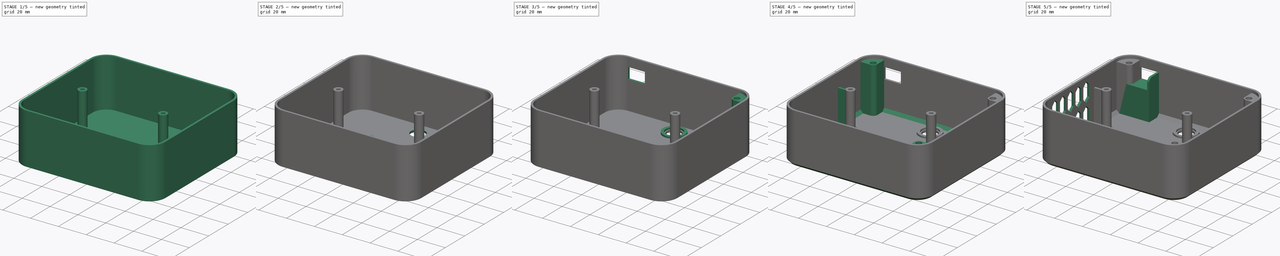
[diagram: build sequence overview — one tinted view per stage of 5, left to right]
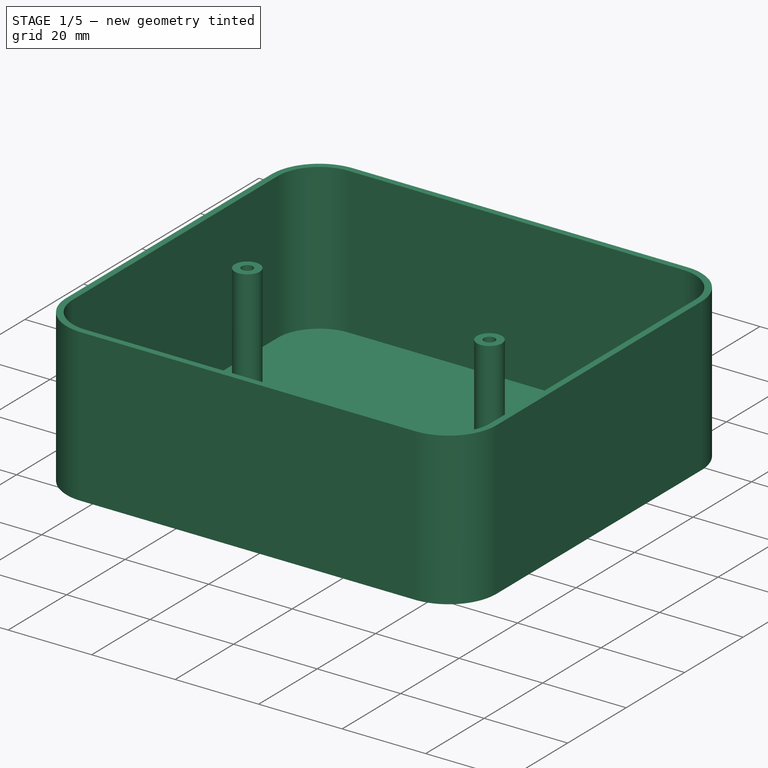
[diagram: stage 1 of 5 — iso view after this stage's code; geometry added in this stage tinted green]
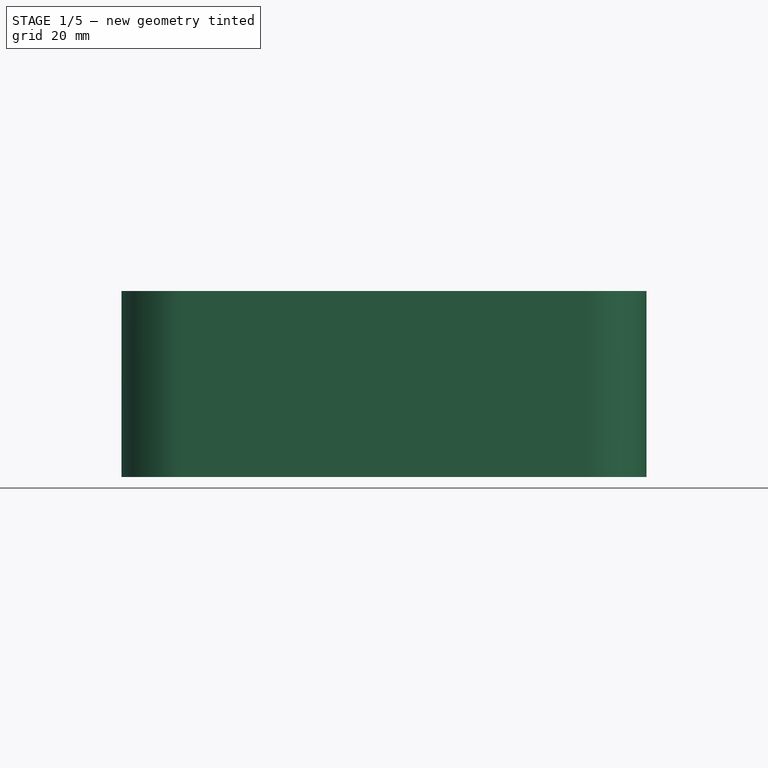
[diagram: stage 1 of 5 — front view after this stage's code; geometry added in this stage tinted green]
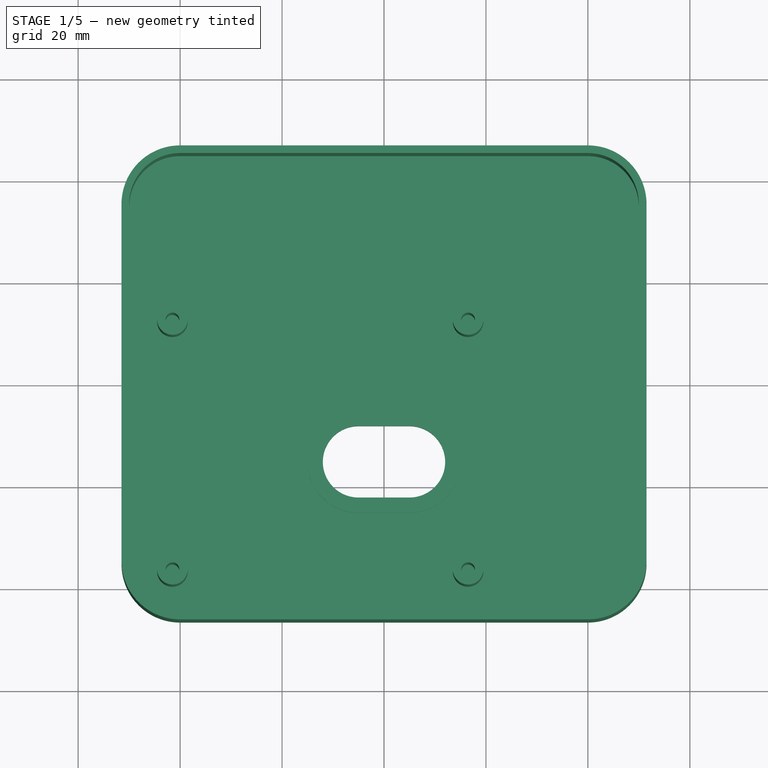
[diagram: stage 1 of 5 — top view after this stage's code; geometry added in this stage tinted green]
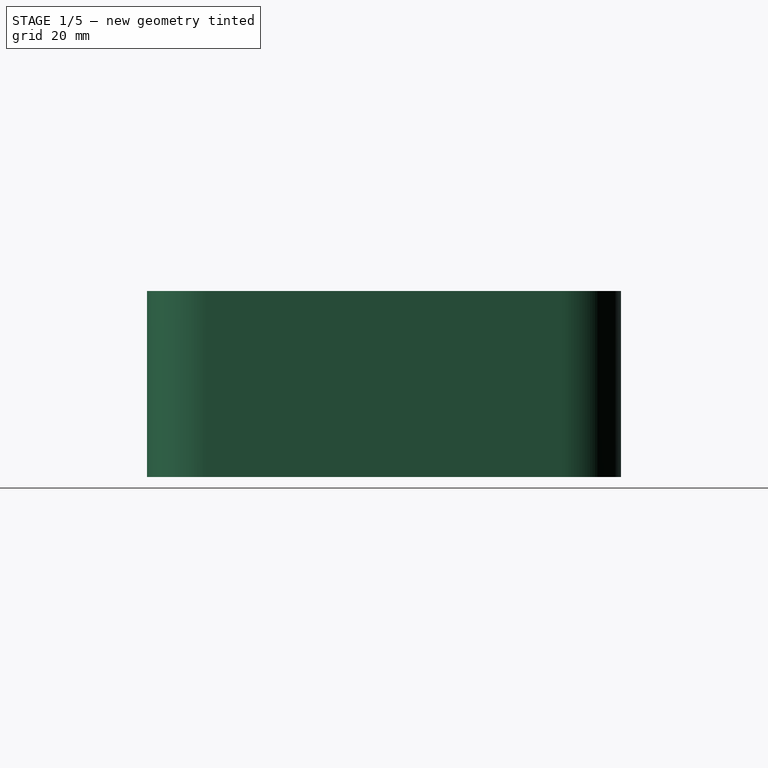
[diagram: stage 1 of 5 — right view after this stage's code; geometry added in this stage tinted green]
FCSTD DOCUMENT  (FreeCAD 1.0R39285 (Git))
Label: case_top
License: All rights reserved
LicenseURL: https://en.wikipedia.org/wiki/All_rights_reserved
objects: Sketcher::SketchObject×14, PartDesign::Pad×9, PartDesign::Pocket×6, PartDesign::LinearPattern×4, PartDesign::Mirrored×2, PartDesign::Chamfer×2, PartDesign::Thickness×1, PartDesign::MultiTransform×1, PartDesign::Fillet×1, PartDesign::Body×1
note: 100 computed .brp shape members not serialized (recipe doc carries the construction recipe); baked Part::Feature solids carry a one-line shape summary decoded from their .brp

FEATURE [Sketcher::SketchObject] Sketch
  ArcFitTolerance = 1e-06
  AttachmentSupport = -> [XY_Plane]
  FullyConstrained = true
  MakeInternals = false
  MapMode = 5
  sketch-geometry (13):
    g0: LineSegment StartX=50 StartY=-35 StartZ=0 EndX=50 EndY=35 EndZ=0
    g1: LineSegment StartX=40 StartY=45 StartZ=0 EndX=-40 EndY=45 EndZ=0
    g2: LineSegment StartX=-50 StartY=35 StartZ=0 EndX=-50 EndY=-35 EndZ=0
    g3: LineSegment StartX=-40 StartY=-45 StartZ=0 EndX=40 EndY=-45 EndZ=0
    g4: GeomPoint [constr] X=0 Y=0 Z=0
    g5: ArcOfCircle CenterX=-40 CenterY=35 CenterZ=0 NormalX=0 NormalY=0 NormalZ=1 AngleXU=0 Radius=10 StartAngle=1.5708 EndAngle=3.14159
    g6: GeomPoint [constr] X=-50 Y=45 Z=0
    g7: ArcOfCircle CenterX=40 CenterY=35 CenterZ=0 NormalX=0 NormalY=0 NormalZ=1 AngleXU=0 Radius=10 StartAngle=3e-16 EndAngle=1.5708
    g8: GeomPoint [constr] X=50 Y=45 Z=0
    g9: ArcOfCircle CenterX=40 CenterY=-35 CenterZ=0 NormalX=0 NormalY=0 NormalZ=1 AngleXU=0 Radius=10 StartAngle=4.71239 EndAngle=6.28319
    g10: GeomPoint [constr] X=50 Y=-45 Z=0
    g11: ArcOfCircle CenterX=-40 CenterY=-35 CenterZ=0 NormalX=0 NormalY=0 NormalZ=1 AngleXU=0 Radius=10 StartAngle=3.14159 EndAngle=4.71239
    g12: GeomPoint [constr] X=-50 Y=-45 Z=0
  constraints (28):
    c: Vertical(g0)
    c: Vertical(g2)
    c: Horizontal(g1)
    c: Horizontal(g3)
    c: Symmetric(g6,g10,g4)
    c: Coincident(g4,g-1)
    c: PointOnObject(g6,g1)
    c: PointOnObject(g6,g2)
    c: Tangent(g1,g5) = -1.5708
    c: Tangent(g2,g5) = -1.5708
    c: PointOnObject(g8,g0)
    c: PointOnObject(g8,g1)
    c: Tangent(g0,g7) = -1.5708
    c: Tangent(g1,g7) = -1.5708
    c: PointOnObject(g10,g0)
    c: PointOnObject(g10,g3)
    c: Tangent(g0,g9) = -1.5708
    c: Tangent(g3,g9) = -1.5708
    c: PointOnObject(g12,g2)
    c: PointOnObject(g12,g3)
    c: Tangent(g2,g11) = -1.5708
    c: Tangent(g3,g11) = -1.5708
    c: Distance(g3,g1) = 90
    c: Distance(g0,g2) = 100
    c: Radius(g7) = 10
    c: Equal(g7,g9)
    c: Equal(g9,g11)
    c: Equal(g11,g5)
FEATURE [PartDesign::Pad] Pad  label="Volume de base"
  Direction = (0,0,1)
  Length = 35
  Length2 = 10
  Profile = -> Sketch
  ReferenceAxis = -> Sketch [N_Axis]
  Refine = true
  Suppressed = false
  Type = 0
FEATURE [PartDesign::Thickness] Thickness  label="Coque"
  Base = -> Pad [Face10]
  BaseFeature = -> Pad
  Intersection = false
  Join = 1
  Mode = 0
  Refine = true
  SupportTransform = false
  Suppressed = false
  Value = 1.5
FEATURE [Sketcher::SketchObject] Sketch001
  ArcFitTolerance = 1e-06
  AttachmentSupport = -> [Thickness]
  ExternalGeometry = -> [Thickness]
  FullyConstrained = true
  MakeInternals = false
  MapMode = 5
  sketch-geometry (12):
    g0: LineSegment [constr] StartX=-41.5 StartY=12.5 StartZ=0 EndX=-41.5 EndY=-36.5 EndZ=0
    g1: LineSegment [constr] StartX=-41.5 StartY=-36.5 StartZ=0 EndX=16.5 EndY=-36.5 EndZ=0
    g2: LineSegment [constr] StartX=16.5 StartY=-36.5 StartZ=0 EndX=16.5 EndY=12.5 EndZ=0
    g3: LineSegment [constr] StartX=16.5 StartY=12.5 StartZ=0 EndX=-41.5 EndY=12.5 EndZ=0
    g4: Circle CenterX=-41.5 CenterY=12.5 CenterZ=0 NormalX=0 NormalY=0 NormalZ=1 AngleXU=0 Radius=3
    g5: Circle CenterX=-41.5 CenterY=-36.5 CenterZ=0 NormalX=0 NormalY=0 NormalZ=1 AngleXU=0 Radius=3
    g6: Circle CenterX=-41.5 CenterY=-36.5 CenterZ=0 NormalX=0 NormalY=0 NormalZ=1 AngleXU=0 Radius=1.35
    g7: Circle CenterX=16.5 CenterY=-36.5 CenterZ=0 NormalX=0 NormalY=0 NormalZ=1 AngleXU=0 Radius=3
    g8: Circle CenterX=16.5 CenterY=-36.5 CenterZ=0 NormalX=0 NormalY=0 NormalZ=1 AngleXU=0 Radius=1.35
    g9: Circle CenterX=16.5 CenterY=12.5 CenterZ=0 NormalX=0 NormalY=0 NormalZ=1 AngleXU=0 Radius=3
    g10: Circle CenterX=16.5 CenterY=12.5 CenterZ=0 NormalX=0 NormalY=0 NormalZ=1 AngleXU=0 Radius=1.35
    g11: Circle CenterX=-41.5 CenterY=12.5 CenterZ=0 NormalX=0 NormalY=0 NormalZ=1 AngleXU=0 Radius=1.35
  constraints (28):
    c: Coincident(g0,g1)
    c: Coincident(g1,g2)
    c: Coincident(g2,g3)
    c: Coincident(g3,g0)
    c: Vertical(g0)
    c: Vertical(g2)
    c: Horizontal(g1)
    c: Horizontal(g3)
    c: Coincident(g4,g0)
    c: Coincident(g5,g0)
    c: Coincident(g6,g0)
    c: Coincident(g7,g1)
    c: Coincident(g8,g1)
    c: Coincident(g9,g2)
    c: Coincident(g10,g2)
    c: Coincident(g11,g0)
    c: Equal(g8,g6)
    c: Equal(g6,g11)
    c: Equal(g11,g10)
    c: Diameter(g10) = 2.7
    c: Equal(g4,g9)
    c: Equal(g9,g5)
    c: Equal(g5,g7)
    c: Diameter(g9) = 6
    c: DistanceX(g3,g3) = 58
    c: DistanceY(g2,g2) = 49
    c: Distance(g-3,g0) = 8.5
    c: Distance(g1,g-5) = 8.5
FEATURE [PartDesign::Pad] Pad001  label="Piliers RPi"
  BaseFeature = -> Thickness
  Direction = (0,0,1)
  Length = 26
  Length2 = 10
  Profile = -> Sketch001
  ReferenceAxis = -> Sketch001 [N_Axis]
  Refine = true
  Suppressed = false
  Type = 0
FEATURE [Sketcher::SketchObject] Sketch002
  ArcFitTolerance = 1e-06
  AttachmentSupport = -> [Pad001]
  FullyConstrained = true
  MakeInternals = false
  MapMode = 5
  sketch-geometry (9):
    g0: ArcOfCircle CenterX=-5 CenterY=-15 CenterZ=0 NormalX=0 NormalY=0 NormalZ=1 AngleXU=0 Radius=10 StartAngle=1.5708 EndAngle=4.71239
    g1: ArcOfCircle CenterX=5 CenterY=-15 CenterZ=0 NormalX=0 NormalY=0 NormalZ=1 AngleXU=0 Radius=10 StartAngle=4.71239 EndAngle=7.85398
    g2: LineSegment StartX=-5 StartY=-5 StartZ=0 EndX=5 EndY=-5 EndZ=0
    g3: LineSegment StartX=-5 StartY=-25 StartZ=0 EndX=5 EndY=-25 EndZ=0
    g4: LineSegment [constr] StartX=0 StartY=-5 StartZ=0 EndX=0 EndY=0 EndZ=0
    g5: ArcOfCircle CenterX=-5 CenterY=-15 CenterZ=0 NormalX=0 NormalY=0 NormalZ=1 AngleXU=0 Radius=7 StartAngle=1.5708 EndAngle=4.71239
    g6: ArcOfCircle CenterX=5 CenterY=-15 CenterZ=0 NormalX=0 NormalY=0 NormalZ=1 AngleXU=0 Radius=7 StartAngle=4.71239 EndAngle=7.85398
    g7: LineSegment StartX=-5 StartY=-8 StartZ=0 EndX=5 EndY=-8 EndZ=0
    g8: LineSegment StartX=-5 StartY=-22 StartZ=0 EndX=5 EndY=-22 EndZ=0
  constraints (20):
    c: Tangent(g0,g2) = 1.5708
    c: Tangent(g0,g3) = -1.5708
    c: Tangent(g1,g2) = 1.5708
    c: Tangent(g1,g3) = -1.5708
    c: Equal(g0,g1)
    c: Symmetric(g2,g2,g4)
    c: Coincident(g4,g-1)
    c: Vertical(g4)
    c: Horizontal(g2)
    c: Distance(g2,g3) = 20
    c: DistanceX(g3,g3) = 10
    c: DistanceY(g4,g4) = 5
    c: Tangent(g5,g7) = 1.5708
    c: Tangent(g5,g8) = -1.5708
    c: Tangent(g6,g7) = 1.5708
    c: Tangent(g6,g8) = -1.5708
    c: Equal(g5,g6)
    c: Distance(g2,g7) = 3
    c: Coincident(g6,g1)
    c: Coincident(g5,g0)
FEATURE [PartDesign::Pad] Pad002  label="Levre speaker"
  BaseFeature = -> Pad001
  Direction = (0,0,1)
  Length = 1.2
  Length2 = 10
  Profile = -> Sketch002
  ReferenceAxis = -> Sketch002 [N_Axis]
  Refine = true
  Suppressed = false
  Type = 0
FEATURE [PartDesign::Pocket] Pocket  label="Trou speaker"
  BaseFeature = -> Pad002
  Direction = (0,0,-1)
  Length = 5
  Length2 = 5
  Profile = -> Pad002 [Face43]
  Refine = true
  Suppressed = false
  Type = 1
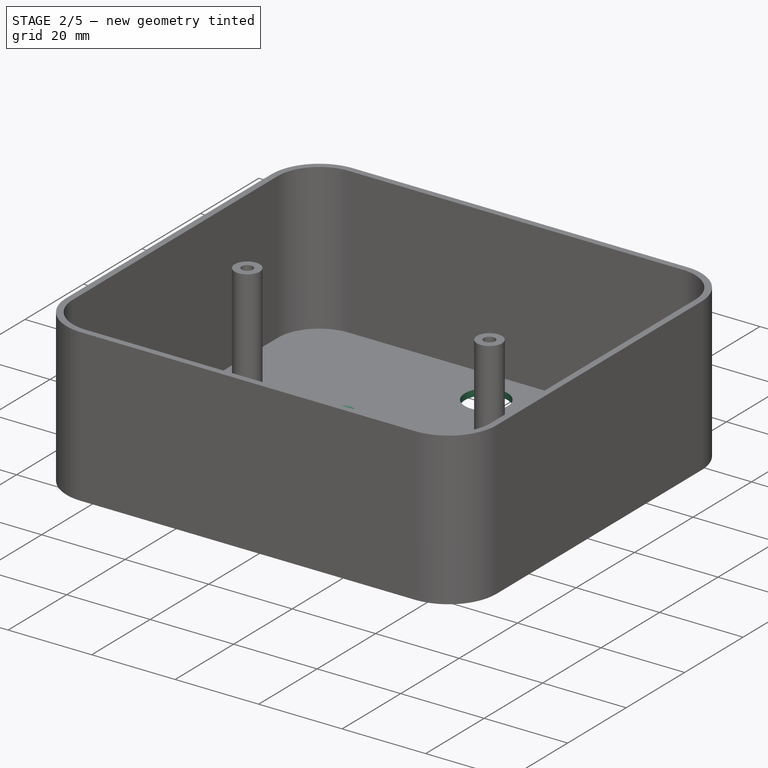
[diagram: stage 2 of 5 — iso view after this stage's code; geometry added in this stage tinted green]
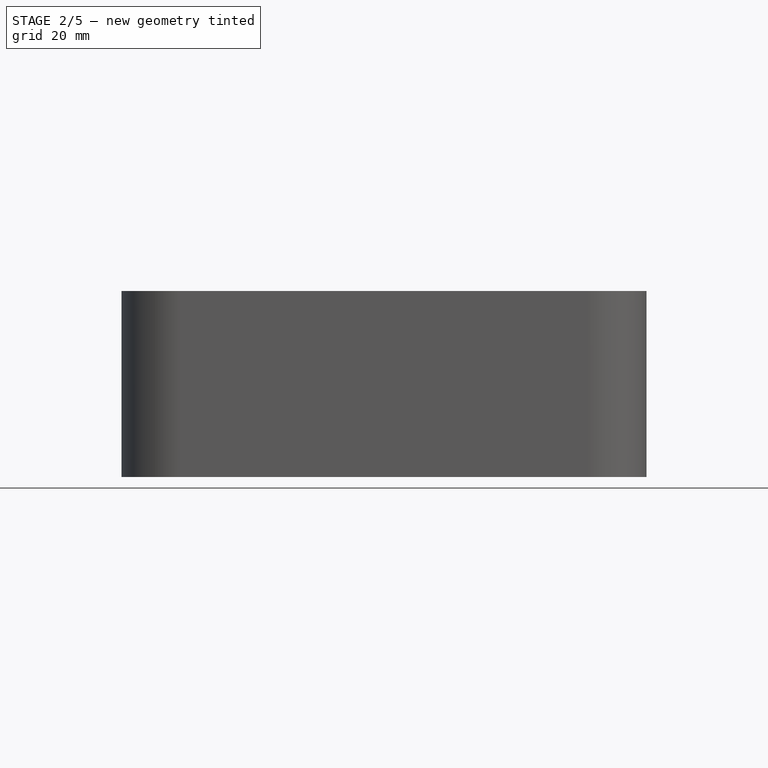
[diagram: stage 2 of 5 — front view after this stage's code; geometry added in this stage tinted green]
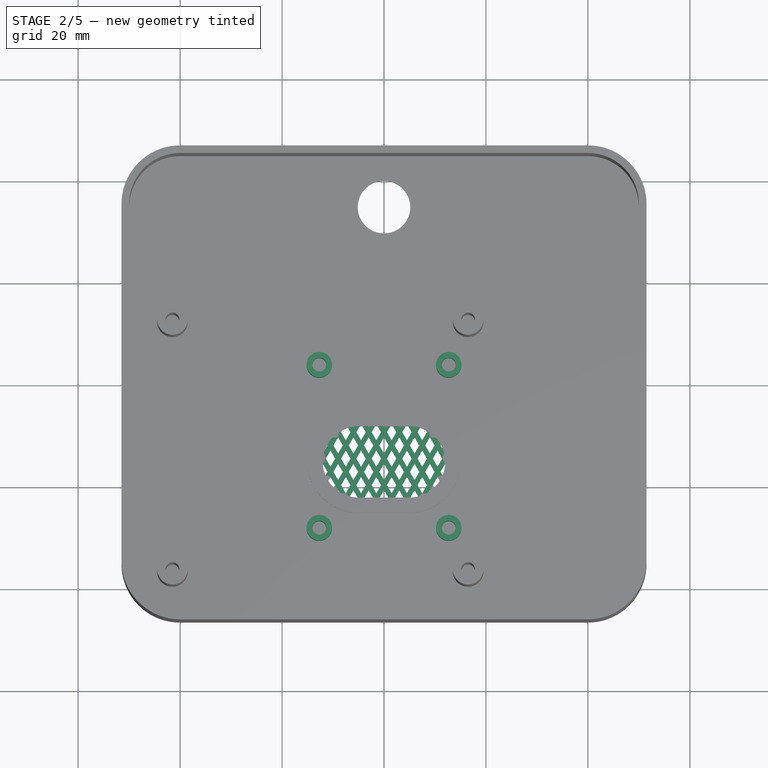
[diagram: stage 2 of 5 — top view after this stage's code; geometry added in this stage tinted green]
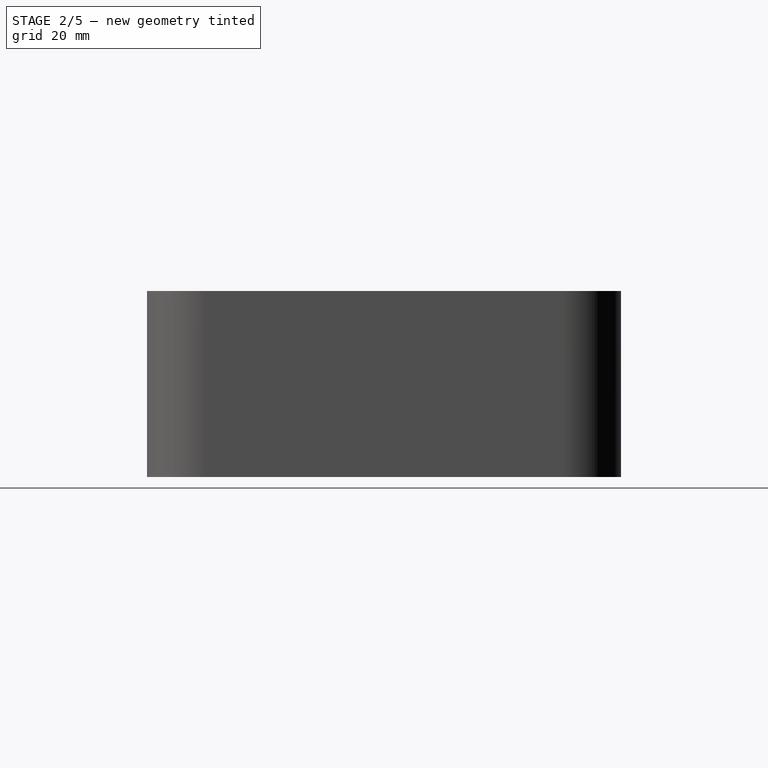
[diagram: stage 2 of 5 — right view after this stage's code; geometry added in this stage tinted green]
FEATURE [Sketcher::SketchObject] Sketch003
  ArcFitTolerance = 1e-06
  AttachmentSupport = -> [Pocket]
  ExternalGeometry = -> [Pocket]
  FullyConstrained = false
  MakeInternals = false
  MapMode = 5
  sketch-geometry (12):
    g0: LineSegment StartX=-5 StartY=-22 StartZ=0 EndX=-0.57735 EndY=-14.3397 EndZ=0
    g1: LineSegment StartX=3.0829 StartY=-8 StartZ=0 EndX=4.2376 EndY=-8 EndZ=0
    g2: LineSegment StartX=4.2376 StartY=-8 StartZ=0 EndX=0.57735 EndY=-14.3397 EndZ=0
    g3: LineSegment StartX=-3.8453 StartY=-22 StartZ=0 EndX=-5 EndY=-22 EndZ=0
    g4: LineSegment StartX=5 StartY=-22 StartZ=0 EndX=3.8453 EndY=-22 EndZ=0
    g5: LineSegment StartX=3.8453 StartY=-22 StartZ=0 EndX=1.3e-15 EndY=-15.3397 EndZ=0
    g6: LineSegment StartX=-4.2376 StartY=-8 StartZ=0 EndX=-3.0829 EndY=-8 EndZ=0
    g7: LineSegment StartX=-3.0829 StartY=-8 StartZ=0 EndX=0 EndY=-13.3397 EndZ=0
    g8: LineSegment StartX=0 StartY=-13.3397 StartZ=0 EndX=3.0829 EndY=-8 EndZ=0
    g9: LineSegment StartX=-0.57735 StartY=-14.3397 StartZ=0 EndX=-4.2376 EndY=-8 EndZ=0
    g10: LineSegment StartX=9e-16 StartY=-15.3397 StartZ=0 EndX=-3.8453 EndY=-22 EndZ=0
    g11: LineSegment StartX=0.57735 StartY=-14.3397 StartZ=0 EndX=5 EndY=-22 EndZ=0
  constraints (29):
    c: Coincident(g0,g-4)
    c: PointOnObject(g8,g-6)
    c: Coincident(g1,g8)
    c: PointOnObject(g1,g-6)
    c: Coincident(g2,g1)
    c: Coincident(g3,g10)
    c: Coincident(g3,g0)
    c: Horizontal(g3)
    c: Parallel(g2,g0)
    c: Distance(g2,g0) = 1
    c: Angle(g-4,g2) = 1.0472
    c: Coincident(g4,g-5)
    c: PointOnObject(g4,g-4)
    c: Coincident(g5,g4)
    c: PointOnObject(g9,g-6)
    c: Coincident(g6,g9)
    c: PointOnObject(g6,g-6)
    c: Coincident(g7,g6)
    c: Coincident(g11,g4)
    c: Parallel(g7,g5)
    c: Equal(g3,g4)
    c: Angle(g5,g-4) = 1.0472
    c: PointOnObject(g0,g9)
    c: PointOnObject(g5,g10)
    c: PointOnObject(g9,g0)
    c: PointOnObject(g2,g11)
    c: PointOnObject(g10,g5)
    c: Coincident(g7,g8)
    c: PointOnObject(g11,g2)
FEATURE [PartDesign::Pad] Pad003  label="Grillage speaker"
  BaseFeature = -> Pocket
  Direction = (0,0,1)
  Length = 1
  Length2 = 10
  Profile = -> Sketch003
  ReferenceAxis = -> Sketch003 [N_Axis]
  Refine = true
  Reversed = true
  Suppressed = false
  Type = 3
  UpToFace = -> Pocket [Face32]
FEATURE [PartDesign::LinearPattern] LinearPattern  label="Grillage speaker001"
  BaseFeature = -> Pad003
  Direction = -> Sketch003 [H_Axis]
  Length = 12
  Mode = 1
  Occurrences = 5
  Offset = 3
  Originals = -> [Pad003]
  Refine = true
  Suppressed = false
  TransformMode = 0
FEATURE [PartDesign::LinearPattern] LinearPattern001  label="Grillage speaker002"
  BaseFeature = -> LinearPattern
  Direction = -> Sketch003 [H_Axis]
  Length = 12
  Mode = 1
  Occurrences = 5
  Offset = 3
  Originals = -> [Pad003]
  Refine = true
  Reversed = true
  Suppressed = false
  TransformMode = 0
FEATURE [Sketcher::SketchObject] Sketch004
  ArcFitTolerance = 1e-06
  AttachmentSupport = -> [LinearPattern001]
  ExternalGeometry = -> [LinearPattern001]
  FullyConstrained = true
  MakeInternals = false
  MapMode = 5
  sketch-geometry (13):
    g0: LineSegment [constr] StartX=12.7 StartY=-28 StartZ=0 EndX=12.7 EndY=4 EndZ=0
    g1: LineSegment [constr] StartX=12.7 StartY=4 StartZ=0 EndX=-12.7 EndY=4 EndZ=0
    g2: LineSegment [constr] StartX=-12.7 StartY=4 StartZ=0 EndX=-12.7 EndY=-28 EndZ=0
    g3: LineSegment [constr] StartX=-12.7 StartY=-28 StartZ=0 EndX=12.7 EndY=-28 EndZ=0
    g4: GeomPoint [constr] X=0 Y=-12 Z=0
    g5: Circle CenterX=-12.7 CenterY=4 CenterZ=0 NormalX=0 NormalY=0 NormalZ=1 AngleXU=0 Radius=1.35
    g6: Circle CenterX=-12.7 CenterY=4 CenterZ=0 NormalX=0 NormalY=0 NormalZ=1 AngleXU=0 Radius=2.5
    g7: Circle CenterX=-12.7 CenterY=-28 CenterZ=0 NormalX=0 NormalY=0 NormalZ=1 AngleXU=0 Radius=1.35
    g8: Circle CenterX=-12.7 CenterY=-28 CenterZ=0 NormalX=0 NormalY=0 NormalZ=1 AngleXU=0 Radius=2.5
    g9: Circle CenterX=12.7 CenterY=-28 CenterZ=0 NormalX=0 NormalY=0 NormalZ=1 AngleXU=0 Radius=1.35
    g10: Circle CenterX=12.7 CenterY=-28 CenterZ=0 NormalX=0 NormalY=0 NormalZ=1 AngleXU=0 Radius=2.5
    g11: Circle CenterX=12.7 CenterY=4 CenterZ=0 NormalX=0 NormalY=0 NormalZ=1 AngleXU=0 Radius=1.35
    g12: Circle CenterX=12.7 CenterY=4 CenterZ=0 NormalX=0 NormalY=0 NormalZ=1 AngleXU=0 Radius=2.5
  constraints (29):
    c: Coincident(g0,g1)
    c: Coincident(g1,g2)
    c: Coincident(g2,g3)
    c: Coincident(g3,g0)
    c: Vertical(g0)
    c: Vertical(g2)
    c: Horizontal(g1)
    c: Horizontal(g3)
    c: Symmetric(g2,g0,g4)
    c: PointOnObject(g4,g-2)
    c: Coincident(g5,g1)
    c: Coincident(g6,g1)
    c: Coincident(g7,g2)
    c: Coincident(g8,g2)
    c: Coincident(g9,g0)
    c: Coincident(g10,g0)
    c: Coincident(g11,g0)
    c: Coincident(g12,g0)
    c: Equal(g9,g11)
    c: Equal(g11,g5)
    c: Equal(g5,g7)
    c: Equal(g8,g6)
    c: Equal(g6,g12)
    c: Equal(g12,g10)
    c: DistanceY(g0,g0) = 32
    c: DistanceX(g3,g3) = 25.4
    c: Diameter(g6) = 5
    c: Diameter(g5) = 2.7
    c: Distance(g3,g-3) = 3
FEATURE [PartDesign::Pad] Pad004  label="Piliers speaker"
  BaseFeature = -> LinearPattern001
  Direction = (0,0,1)
  Length = 6
  Length2 = 10
  Profile = -> Sketch004
  ReferenceAxis = -> Sketch004 [N_Axis]
  Refine = true
  Suppressed = false
  Type = 0
FEATURE [Sketcher::SketchObject] Sketch005
  ArcFitTolerance = 1e-06
  AttachmentSupport = -> [Pad004]
  FullyConstrained = true
  MakeInternals = false
  MapMode = 5
  sketch-geometry (1):
    g0: Circle CenterX=0 CenterY=35 CenterZ=0 NormalX=0 NormalY=0 NormalZ=1 AngleXU=0 Radius=5.15
  constraints (3):
    c: PointOnObject(g0,g-2)
    c: Diameter(g0) = 10.3
    c: DistanceY(g-1,g0) = 35
FEATURE [PartDesign::Pocket] Pocket001  label="Trou PIR"
  BaseFeature = -> Pad004
  Direction = (0,0,-1)
  Length = 5
  Length2 = 5
  Profile = -> Sketch005
  ReferenceAxis = -> Sketch005 [N_Axis]
  Refine = true
  Suppressed = false
  Type = 1
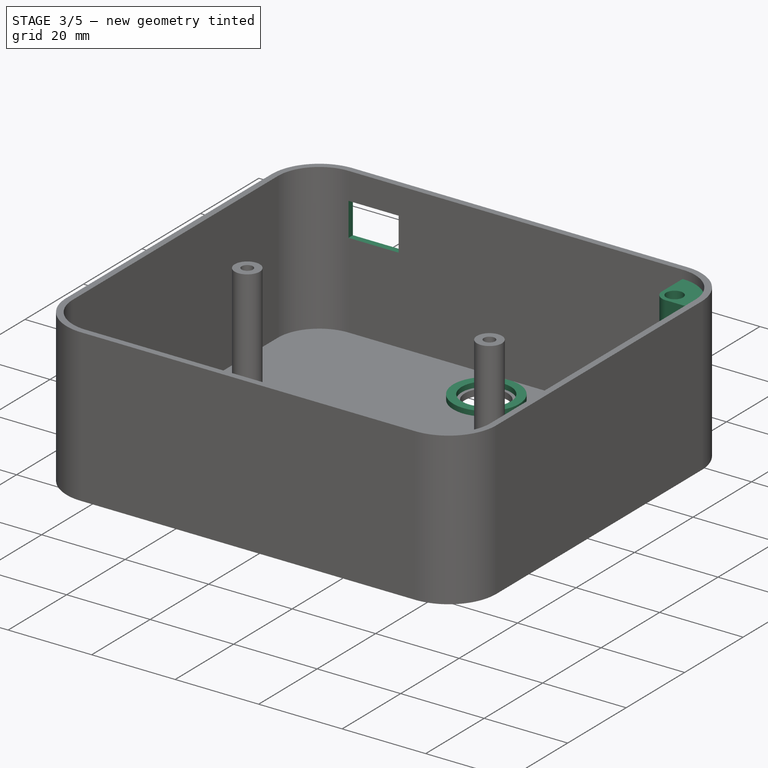
[diagram: stage 3 of 5 — iso view after this stage's code; geometry added in this stage tinted green]
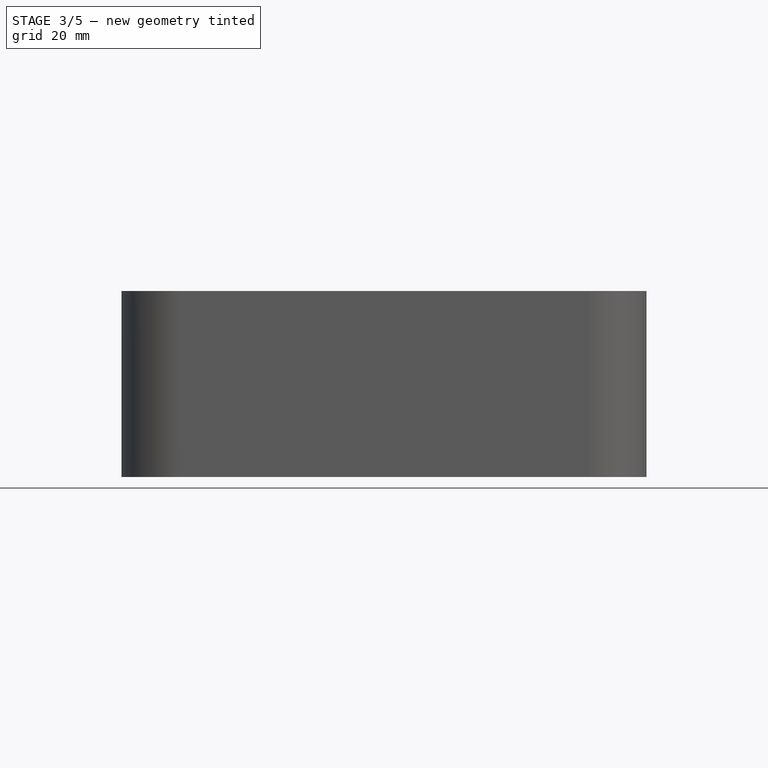
[diagram: stage 3 of 5 — front view after this stage's code; geometry added in this stage tinted green]
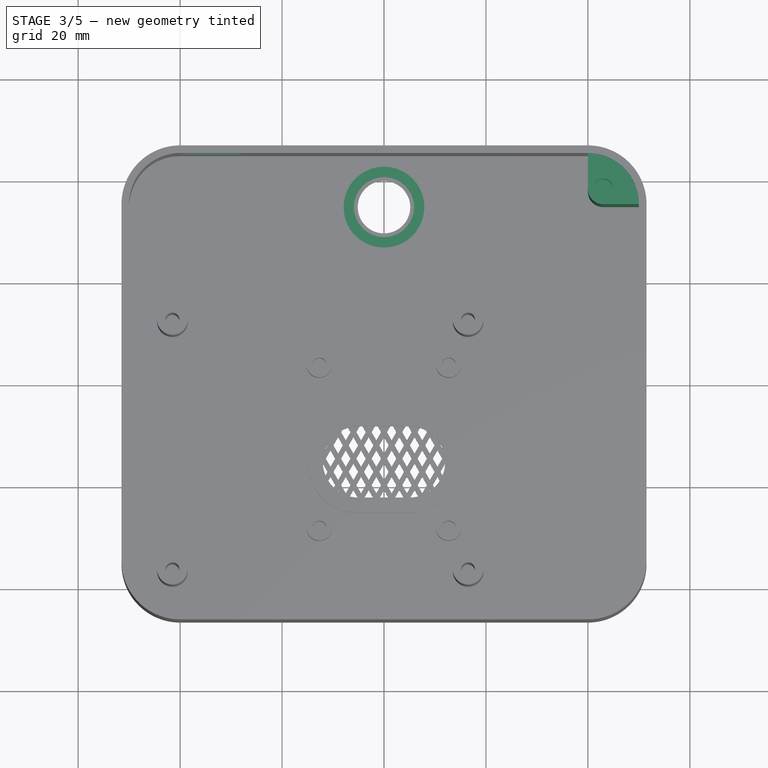
[diagram: stage 3 of 5 — top view after this stage's code; geometry added in this stage tinted green]
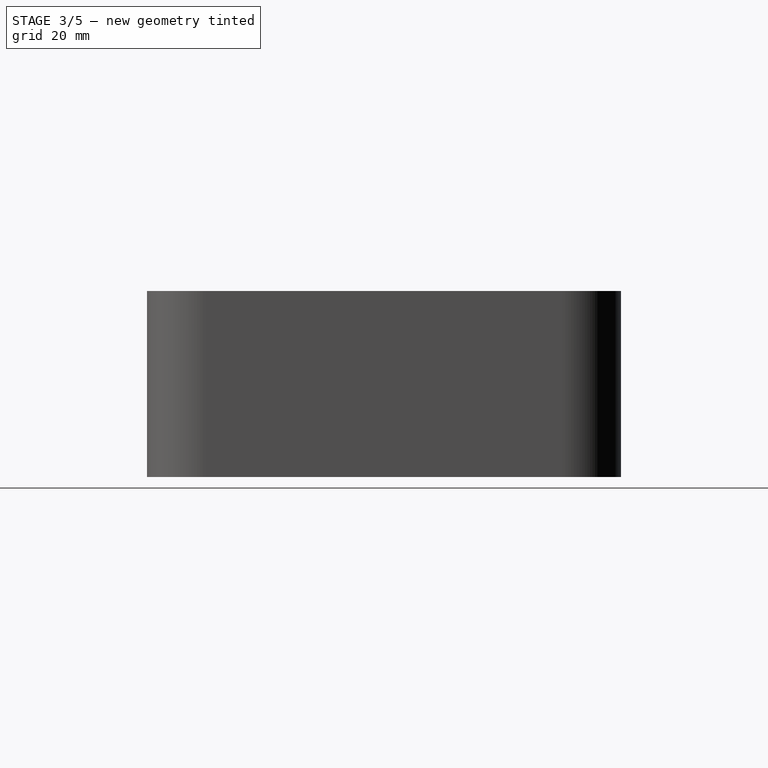
[diagram: stage 3 of 5 — right view after this stage's code; geometry added in this stage tinted green]
FEATURE [Sketcher::SketchObject] Sketch006
  ArcFitTolerance = 1e-06
  AttachmentSupport = -> [Pocket001]
  ExternalGeometry = -> [Pocket001]
  FullyConstrained = true
  MakeInternals = false
  MapMode = 5
  sketch-geometry (2):
    g0: Circle CenterX=0 CenterY=35 CenterZ=0 NormalX=0 NormalY=0 NormalZ=1 AngleXU=0 Radius=7.9
    g1: Circle CenterX=0 CenterY=35 CenterZ=0 NormalX=0 NormalY=0 NormalZ=1 AngleXU=0 Radius=5.9
  constraints (4):
    c: Coincident(g0,g-3)
    c: Coincident(g1,g0)
    c: Distance(g1,g0) = 2
    c: Diameter(g1) = 11.8
FEATURE [PartDesign::Pad] Pad005  label="Levre PIR"
  BaseFeature = -> Pocket001
  Direction = (0,0,1)
  Length = 1.2
  Length2 = 10
  Profile = -> Sketch006
  ReferenceAxis = -> Sketch006 [N_Axis]
  Refine = true
  Suppressed = false
  Type = 0
FEATURE [Sketcher::SketchObject] Sketch007
  ArcFitTolerance = 1e-06
  AttachmentSupport = -> [Pad005]
  ExternalGeometry = -> [Pad005]
  FullyConstrained = true
  MakeInternals = false
  MapMode = 5
  Placement = pos=(0,46.5,0) rot=(0,0.707107,0.707107;3.14159rad)
  sketch-geometry (5):
    g0: LineSegment StartX=40 StartY=20.5 StartZ=0 EndX=40 EndY=28.5 EndZ=0
    g1: LineSegment StartX=40 StartY=28.5 StartZ=0 EndX=28 EndY=28.5 EndZ=0
    g2: LineSegment StartX=28 StartY=28.5 StartZ=0 EndX=28 EndY=20.5 EndZ=0
    g3: LineSegment StartX=28 StartY=20.5 StartZ=0 EndX=40 EndY=20.5 EndZ=0
    g4: GeomPoint [constr] X=34 Y=24.5 Z=0
  constraints (13):
    c: Coincident(g0,g1)
    c: Coincident(g1,g2)
    c: Coincident(g2,g3)
    c: Coincident(g3,g0)
    c: Vertical(g0)
    c: Vertical(g2)
    c: Horizontal(g1)
    c: Horizontal(g3)
    c: Symmetric(g2,g0,g4)
    c: DistanceX(g1,g1) = 12
    c: DistanceY(g0,g0) = 8
    c: Distance(g4,g-3) = 16
    c: Distance(g4,g-4) = 1.5
FEATURE [PartDesign::Pocket] Pocket002  label="Trou USB"
  BaseFeature = -> Pad005
  Direction = (0,-1,2e-16)
  Length = 5
  Length2 = 5
  Profile = -> Sketch007
  ReferenceAxis = -> Sketch007 [N_Axis]
  Refine = true
  Suppressed = false
  Type = 2
FEATURE [Sketcher::SketchObject] Sketch008
  ArcFitTolerance = 1e-06
  AttachmentSupport = -> [Pocket002]
  ExternalGeometry = -> [Pocket002]
  FullyConstrained = true
  MakeInternals = false
  MapMode = 5
  sketch-geometry (5):
    g0: Circle [constr] CenterX=43 CenterY=38 CenterZ=0 NormalX=0 NormalY=0 NormalZ=1 AngleXU=0 Radius=2
    g1: LineSegment StartX=40 StartY=45 StartZ=0 EndX=40 EndY=38 EndZ=0
    g2: LineSegment StartX=50 StartY=35 StartZ=0 EndX=43 EndY=35 EndZ=0
    g3: ArcOfCircle CenterX=40 CenterY=35 CenterZ=0 NormalX=0 NormalY=0 NormalZ=1 AngleXU=0 Radius=10 StartAngle=0 EndAngle=1.5708
    g4: ArcOfCircle CenterX=43 CenterY=38 CenterZ=0 NormalX=0 NormalY=0 NormalZ=1 AngleXU=0 Radius=3 StartAngle=3.14159 EndAngle=4.71239
  constraints (12):
    c: Diameter(g0) = 4
    c: Coincident(g1,g-3)
    c: Vertical(g1)
    c: Coincident(g2,g-3)
    c: Horizontal(g2)
    c: Coincident(g3,g-3)
    c: Coincident(g3,g1)
    c: Coincident(g3,g2)
    c: Coincident(g4,g0)
    c: Tangent(g4,g2) = 1.5708
    c: Tangent(g4,g1) = -1.5708
    c: Distance(g4,g0) = 1
FEATURE [PartDesign::Pad] Pad006  label="Coin"
  BaseFeature = -> Pocket002
  Direction = (0,0,1)
  Length = 10
  Length2 = 10
  Offset = 2
  Profile = -> Sketch008
  ReferenceAxis = -> Sketch008 [N_Axis]
  Refine = true
  Suppressed = false
  Type = 3
  UpToFace = -> Pocket002 [Face5]
FEATURE [Sketcher::SketchObject] Sketch009
  ArcFitTolerance = 1e-06
  AttachmentSupport = -> [Pad006]
  ExternalGeometry = -> [Pad006]
  FullyConstrained = true
  MakeInternals = false
  MapMode = 5
  Placement = pos=(0,0,33) rot=(0,0,1;0rad)
  sketch-geometry (1):
    g0: Circle CenterX=43 CenterY=38 CenterZ=0 NormalX=0 NormalY=0 NormalZ=1 AngleXU=0 Radius=2
  constraints (2):
    c: Coincident(g0,g-3)
    c: Diameter(g0) = 4
FEATURE [PartDesign::Pocket] Pocket003  label="Trou insert M3"
  BaseFeature = -> Pad006
  Direction = (0,0,-1)
  Length = 5.7
  Length2 = 5
  Profile = -> Sketch009
  ReferenceAxis = -> Sketch009 [N_Axis]
  Refine = true
  Suppressed = false
  Type = 0
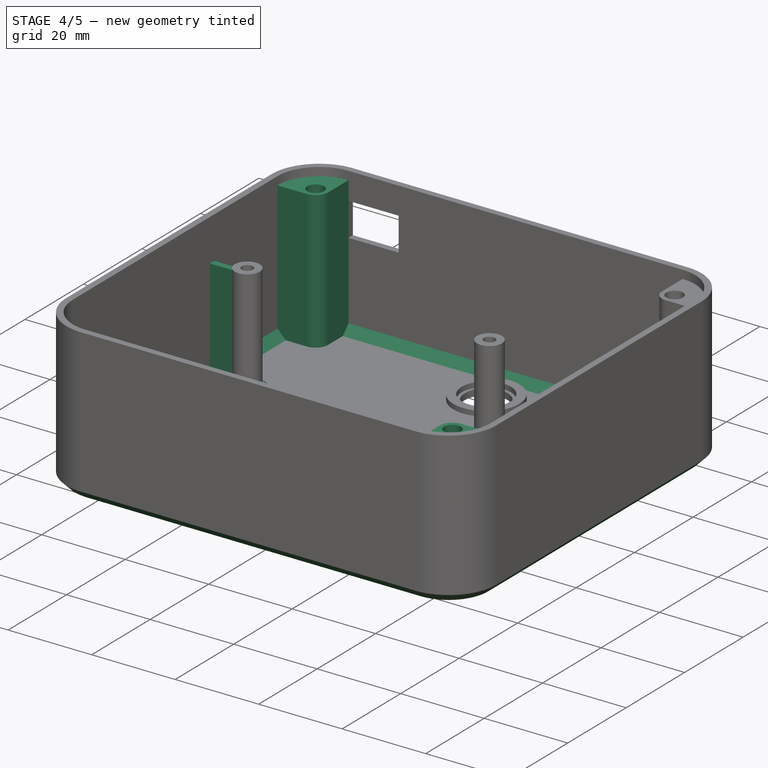
[diagram: stage 4 of 5 — iso view after this stage's code; geometry added in this stage tinted green]
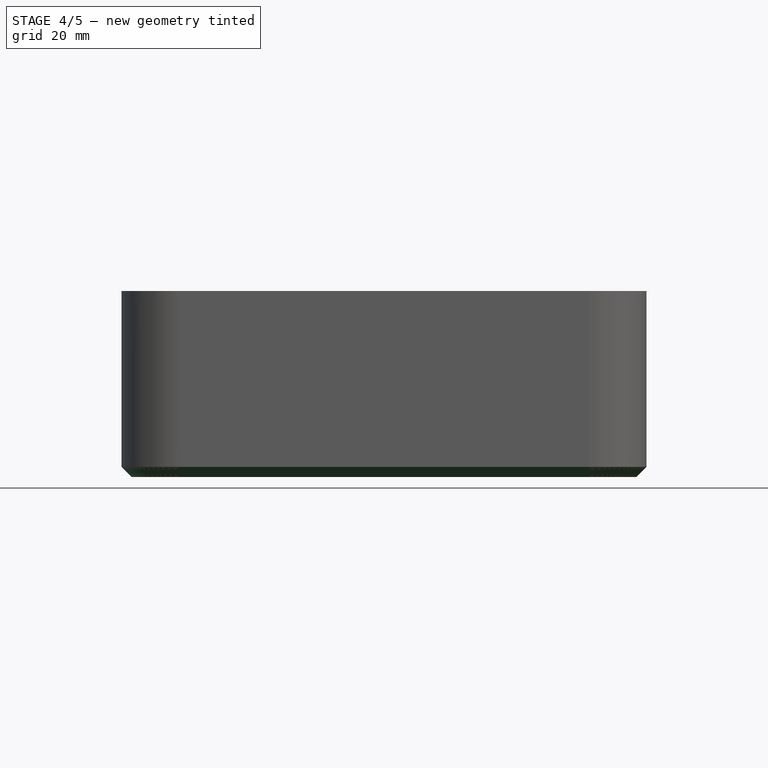
[diagram: stage 4 of 5 — front view after this stage's code; geometry added in this stage tinted green]
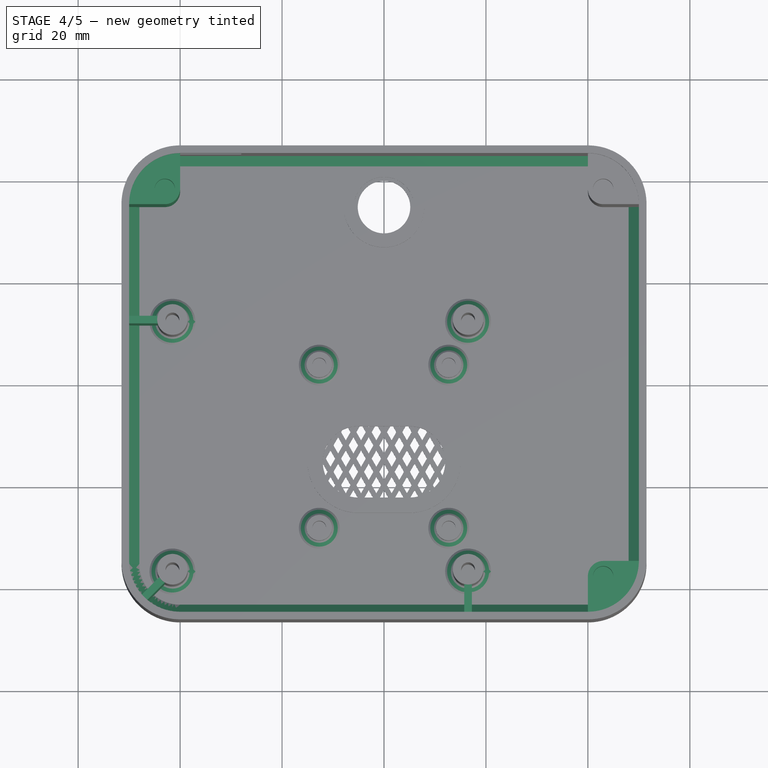
[diagram: stage 4 of 5 — top view after this stage's code; geometry added in this stage tinted green]
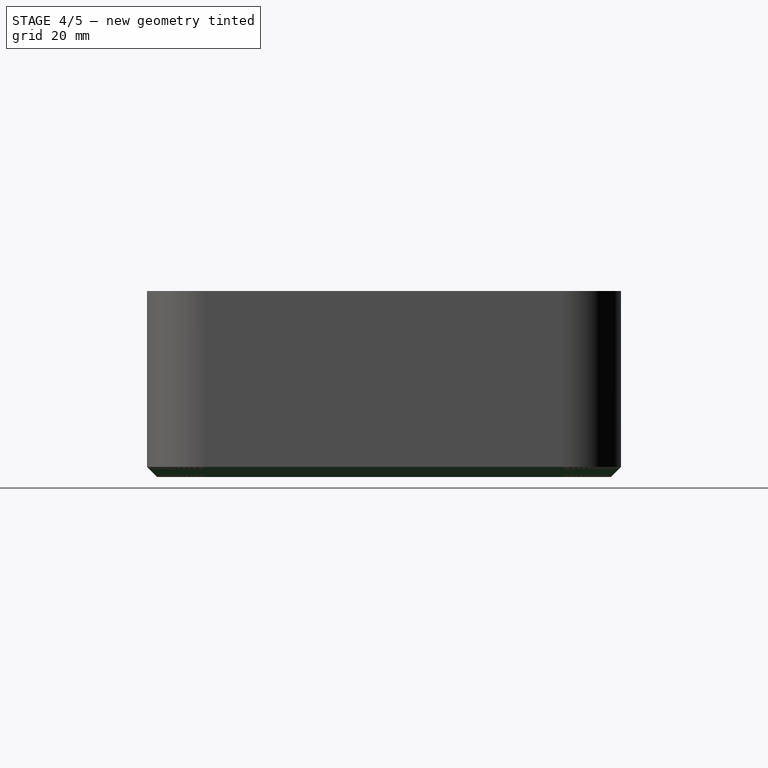
[diagram: stage 4 of 5 — right view after this stage's code; geometry added in this stage tinted green]
FEATURE [PartDesign::Mirrored] Mirrored
  BaseFeature = -> Pocket003
  MirrorPlane = -> YZ_Plane
  Originals = -> [Pad006,Pocket003]
  Refine = true
  Suppressed = false
  TransformMode = 0
FEATURE [PartDesign::Mirrored] Mirrored001
  BaseFeature = -> Mirrored
  MirrorPlane = -> XZ_Plane
  Originals = -> [Pad006,Pocket003]
  Refine = true
  Suppressed = false
  TransformMode = 0
FEATURE [Sketcher::SketchObject] Sketch010
  ArcFitTolerance = 1e-06
  AttachmentSupport = -> [Mirrored001]
  ExternalGeometry = -> [Mirrored001]
  FullyConstrained = true
  MakeInternals = false
  MapMode = 5
  sketch-geometry (12):
    g0: LineSegment StartX=-46.5208 StartY=-42.5815 StartZ=0 EndX=-43.0236 EndY=-39.0843 EndZ=0
    g1: LineSegment StartX=-43.0236 StartY=-39.0843 StartZ=0 EndX=-44.0843 EndY=-38.0236 EndZ=0
    g2: LineSegment StartX=-44.0843 StartY=-38.0236 StartZ=0 EndX=-47.5815 EndY=-41.5208 EndZ=0
    g3: ArcOfCircle CenterX=-41.5 CenterY=-36.5 CenterZ=0 NormalX=0 NormalY=0 NormalZ=1 AngleXU=0 Radius=7.88626 StartAngle=3.83174 EndAngle=4.02224
    g4: LineSegment StartX=17.25 StartY=-39.4047 StartZ=0 EndX=15.75 EndY=-39.4047 EndZ=0
    g5: LineSegment StartX=15.75 StartY=-39.4047 StartZ=0 EndX=15.75 EndY=-45 EndZ=0
    g6: LineSegment StartX=15.75 StartY=-45 StartZ=0 EndX=17.25 EndY=-45 EndZ=0
    g7: LineSegment StartX=17.25 StartY=-45 StartZ=0 EndX=17.25 EndY=-39.4047 EndZ=0
    g8: LineSegment StartX=-44.4047 StartY=13.25 StartZ=0 EndX=-50 EndY=13.25 EndZ=0
    g9: LineSegment StartX=-50 StartY=13.25 StartZ=0 EndX=-50 EndY=11.75 EndZ=0
    g10: LineSegment StartX=-50 StartY=11.75 StartZ=0 EndX=-44.4047 EndY=11.75 EndZ=0
    g11: LineSegment StartX=-44.4047 StartY=11.75 StartZ=0 EndX=-44.4047 EndY=13.25 EndZ=0
  constraints (36):
    c: PointOnObject(g0,g-4)
    c: PointOnObject(g0,g-3)
    c: Coincident(g0,g1)
    c: PointOnObject(g1,g-3)
    c: Coincident(g1,g2)
    c: PointOnObject(g2,g-4)
    c: Coincident(g3,g-3)
    c: Coincident(g3,g2)
    c: Coincident(g3,g0)
    c: Parallel(g2,g0)
    c: Distance(g0,g2) = 1.5
    c: Perpendicular(g1,g2)
    c: Coincident(g4,g5)
    c: Coincident(g5,g6)
    c: Coincident(g6,g7)
    c: Coincident(g7,g4)
    c: Horizontal(g4)
    c: Horizontal(g6)
    c: Vertical(g5)
    c: Vertical(g7)
    c: PointOnObject(g4,g-7)
    c: PointOnObject(g5,g-8)
    c: PointOnObject(g4,g-7)
    c: Coincident(g8,g9)
    c: Coincident(g9,g10)
    c: Coincident(g10,g11)
    c: Coincident(g11,g8)
    c: Horizontal(g8)
    c: Horizontal(g10)
    c: Vertical(g9)
    c: Vertical(g11)
    c: PointOnObject(g8,g-5)
    c: PointOnObject(g10,g-5)
    c: PointOnObject(g9,g-6)
    c: Equal(g9,g4)
    c: Equal(g4,g1)
FEATURE [PartDesign::Pad] Pad007  label="Mur piliers"
  BaseFeature = -> Mirrored001
  Direction = (0,0,1)
  Length = 10
  Length2 = 10
  Offset = 1
  Profile = -> Sketch010
  ReferenceAxis = -> Sketch010 [N_Axis]
  Refine = true
  Suppressed = false
  Type = 3
  UpToFace = -> Mirrored001 [Face49]
FEATURE [PartDesign::Chamfer] Chamfer
  Angle = 45
  Base = -> Pad007 [Edge36,Edge67,Edge45,Edge66,Edge68,Edge70,Edge22,Edge42]
  BaseFeature = -> Pad007
  ChamferType = 0
  FlipDirection = false
  Refine = true
  Size = 1.5
  Size2 = 1
  SupportTransform = false
  Suppressed = false
  UseAllEdges = false
FEATURE [PartDesign::Chamfer] Chamfer001
  Angle = 45
  Base = -> Chamfer [Edge27,Edge17,Edge8,Edge16,Edge24,Edge209,Edge3]
  BaseFeature = -> Chamfer
  ChamferType = 0
  FlipDirection = false
  Refine = true
  Size = 2
  Size2 = 1
  SupportTransform = false
  Suppressed = false
  UseAllEdges = false
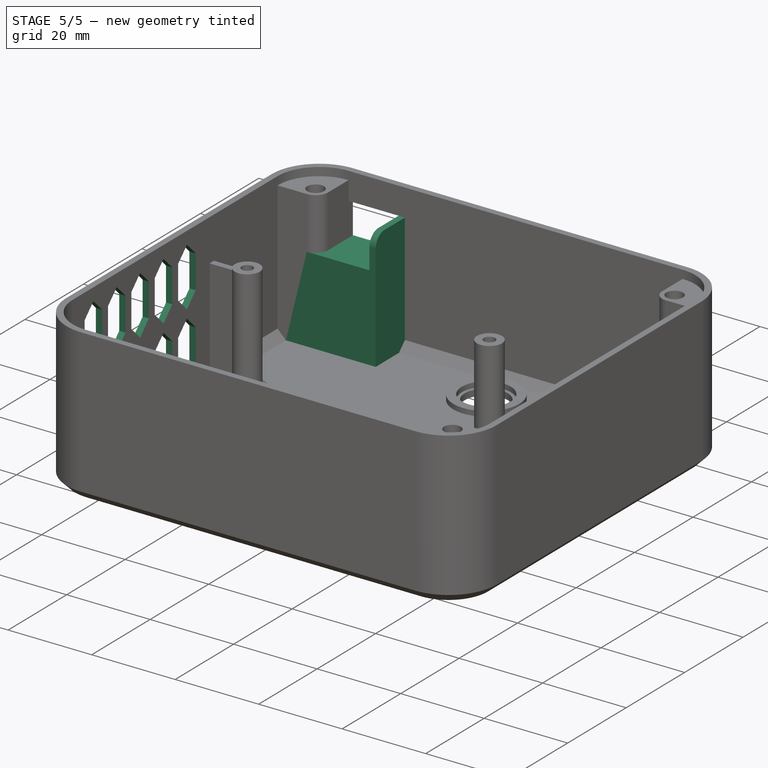
[diagram: stage 5 of 5 — iso view after this stage's code; geometry added in this stage tinted green]
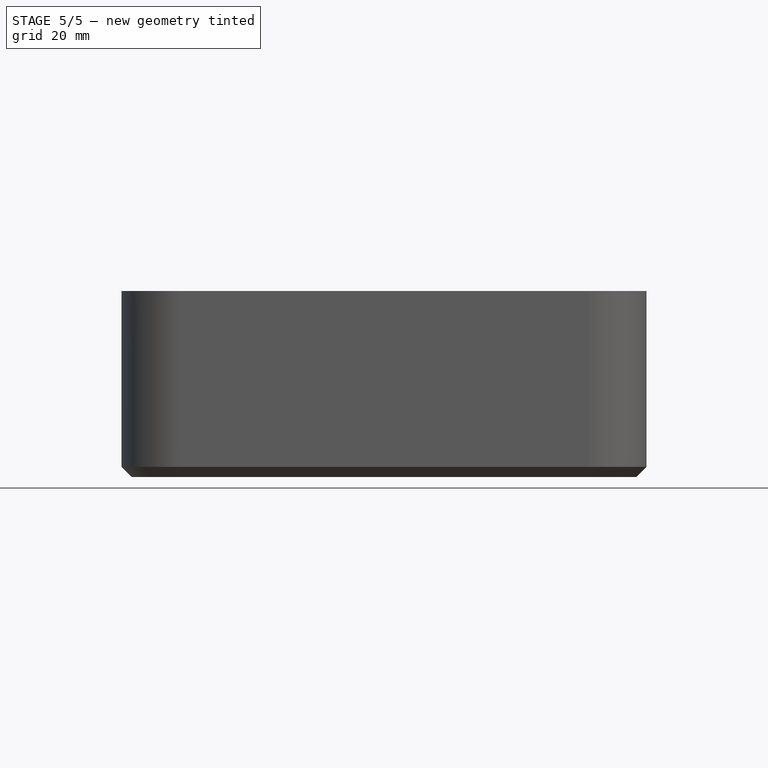
[diagram: stage 5 of 5 — front view after this stage's code; geometry added in this stage tinted green]
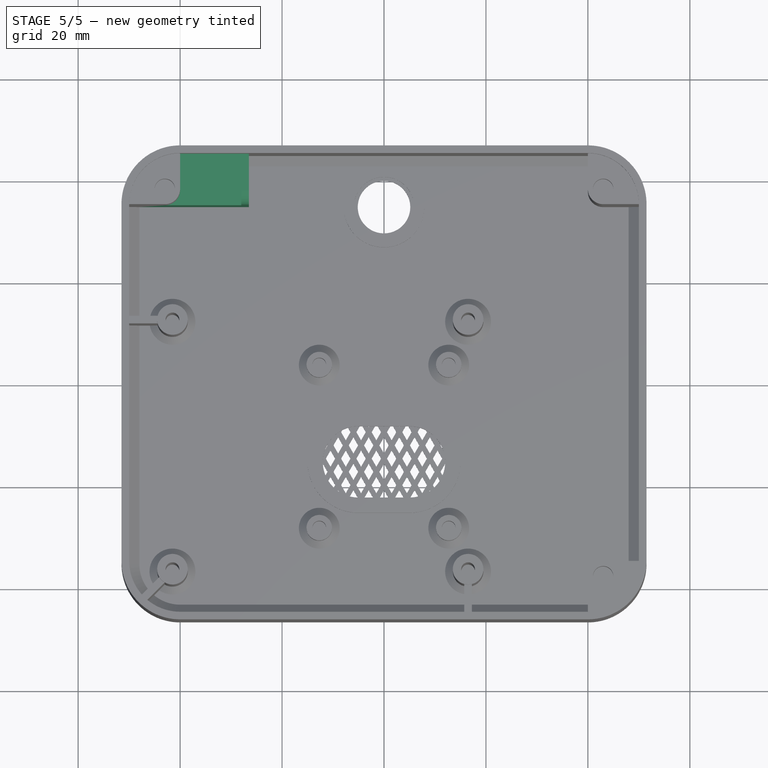
[diagram: stage 5 of 5 — top view after this stage's code; geometry added in this stage tinted green]
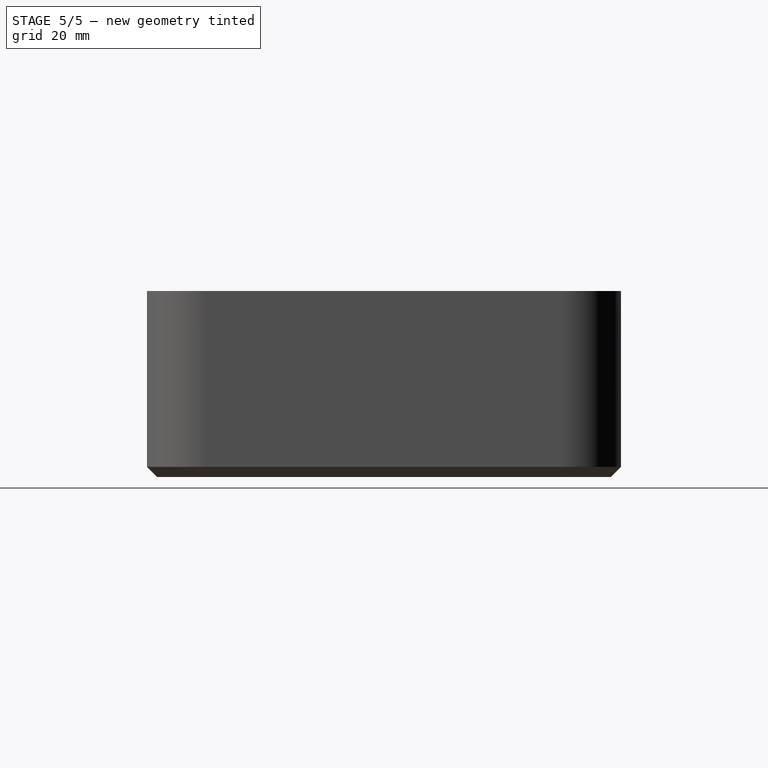
[diagram: stage 5 of 5 — right view after this stage's code; geometry added in this stage tinted green]
FEATURE [Sketcher::SketchObject] Sketch011
  ArcFitTolerance = 1e-06
  AttachmentSupport = -> [Chamfer001]
  FullyConstrained = true
  MakeInternals = false
  MapMode = 5
  Placement = pos=(-51.5,0,0) rot=(0.57735,-0.57735,-0.57735;2.0944rad)
  sketch-geometry (6):
    g0: LineSegment StartX=-7 StartY=5 StartZ=0 EndX=-7 EndY=13 EndZ=0
    g1: LineSegment StartX=-7 StartY=13 StartZ=0 EndX=-4 EndY=16 EndZ=0
    g2: LineSegment StartX=-4 StartY=16 StartZ=0 EndX=-1 EndY=13 EndZ=0
    g3: LineSegment StartX=-1 StartY=13 StartZ=0 EndX=-1 EndY=5 EndZ=0
    g4: LineSegment StartX=-1 StartY=5 StartZ=0 EndX=-4 EndY=2 EndZ=0
    g5: LineSegment StartX=-4 StartY=2 StartZ=0 EndX=-7 EndY=5 EndZ=0
  constraints (18):
    c: Vertical(g0)
    c: Coincident(g0,g1)
    c: Coincident(g1,g2)
    c: Coincident(g2,g3)
    c: Vertical(g3)
    c: Coincident(g3,g4)
    c: Coincident(g4,g5)
    c: Coincident(g5,g0)
    c: Vertical(g4,g1)
    c: Horizontal(g0,g2)
    c: Horizontal(g0,g3)
    c: Equal(g4,g5)
    c: Angle(g4,g5) = 1.5708
    c: Equal(g1,g5)
    c: Distance(g3,g0) = 6
    c: DistanceY(g4,g1) = 14
    c: DistanceX(g4,g-1) = 4
    c: DistanceY(g-1,g4) = 2
FEATURE [PartDesign::Pocket] Pocket004  label="Grille"
  BaseFeature = -> Chamfer001
  Direction = (1,0,0)
  Length = 5
  Length2 = 5
  Profile = -> Sketch011
  ReferenceAxis = -> Sketch011 [N_Axis]
  Refine = true
  Suppressed = false
  Type = 2
FEATURE [PartDesign::LinearPattern] LinearPattern002
  Direction = -> Y_Axis
  Length = 32
  Mode = 1
  Occurrences = 5
  Offset = 8
  Refine = true
  Reversed = true
  Suppressed = false
  TransformMode = 0
FEATURE [PartDesign::LinearPattern] LinearPattern003
  Direction = -> Z_Axis
  Length = 16
  Mode = 0
  Occurrences = 2
  Offset = 16
  Refine = true
  Suppressed = false
  TransformMode = 0
FEATURE [PartDesign::MultiTransform] MultiTransform  label="Grille001"
  BaseFeature = -> Pocket004
  Originals = -> [Pocket004]
  Refine = true
  Suppressed = false
  TransformMode = 0
  Transformations = -> [LinearPattern002,LinearPattern003]
FEATURE [Sketcher::SketchObject] Sketch012
  ArcFitTolerance = 1e-06
  AttachmentSupport = -> [MultiTransform]
  ExternalGeometry = -> [MultiTransform]
  FullyConstrained = true
  MakeInternals = false
  MapMode = 5
  Placement = pos=(0,-35,-1.55e-14) rot=(0,0.707107,0.707107;3.14159rad)
  sketch-geometry (4):
    g0: LineSegment StartX=-46 StartY=22 StartZ=0 EndX=-40 EndY=28 EndZ=0
    g1: LineSegment StartX=-40 StartY=7 StartZ=0 EndX=-46 EndY=7 EndZ=0
    g2: LineSegment StartX=-46 StartY=7 StartZ=0 EndX=-46 EndY=22 EndZ=0
    g3: LineSegment StartX=-40 StartY=28 StartZ=0 EndX=-40 EndY=7 EndZ=0
  constraints (12):
    c: Coincident(g1,g2)
    c: Coincident(g2,g0)
    c: Vertical(g2)
    c: Horizontal(g1)
    c: Coincident(g3,g0)
    c: Coincident(g3,g1)
    c: Vertical(g3)
    c: PointOnObject(g1,g-3)
    c: Angle(g0,g3) = 0.785398
    c: Distance(g0,g-5) = 5
    c: Distance(g2,g2) = 15
    c: Distance(g1,g1) = 6
FEATURE [PartDesign::Pocket] Pocket005  label="Degagement RPi"
  BaseFeature = -> MultiTransform
  Direction = (0,-1,2e-16)
  Length = 8
  Length2 = 5
  Profile = -> Sketch012
  ReferenceAxis = -> Sketch012 [N_Axis]
  Refine = true
  Suppressed = false
  Type = 0
FEATURE [Sketcher::SketchObject] Sketch013
  ArcFitTolerance = 1e-06
  AttachmentSupport = -> [Pocket005]
  ExternalGeometry = -> [Pocket005]
  FullyConstrained = true
  MakeInternals = false
  MapMode = 5
  Placement = pos=(0,45,0) rot=(1,0,0;1.5708rad)
  sketch-geometry (6):
    g0: LineSegment StartX=-28 StartY=28.5 StartZ=0 EndX=-26.5 EndY=28.5 EndZ=0
    g1: LineSegment StartX=-26.5 StartY=28.5 StartZ=0 EndX=-26.5 EndY=-1.07e-14 EndZ=0
    g2: LineSegment StartX=-26.5 StartY=-1.07e-14 StartZ=0 EndX=-43 EndY=-1.07e-14 EndZ=0
    g3: LineSegment StartX=-43 StartY=20.5 StartZ=0 EndX=-28 EndY=20.5 EndZ=0
    g4: LineSegment StartX=-28 StartY=28.5 StartZ=0 EndX=-28 EndY=20.5 EndZ=0
    g5: LineSegment StartX=-43 StartY=-1.07e-14 StartZ=0 EndX=-43 EndY=20.5 EndZ=0
  constraints (16):
    c: Coincident(g-3,g0)
    c: Horizontal(g0)
    c: Coincident(g0,g1)
    c: Coincident(g1,g2)
    c: Horizontal(g3)
    c: Coincident(g4,g0)
    c: Coincident(g4,g3)
    c: Vertical(g1)
    c: Horizontal(g2)
    c: Distance(g0,g0) = 1.5
    c: PointOnObject(g-4,g3)
    c: Coincident(g5,g-7)
    c: Coincident(g5,g3)
    c: Vertical(g5)
    c: Vertical(g4)
    c: Coincident(g2,g5)
FEATURE [PartDesign::Pad] Pad008  label="Support USB"
  BaseFeature = -> Pocket005
  Direction = (0,-1,2e-16)
  Length = 10
  Length2 = 10
  Profile = -> Sketch013
  ReferenceAxis = -> Sketch013 [N_Axis]
  Refine = true
  Suppressed = false
  Type = 0
FEATURE [PartDesign::Fillet] Fillet
  Base = -> Pad008 [Edge230]
  BaseFeature = -> Pad008
  Radius = 3
  Refine = true
  SupportTransform = false
  Suppressed = false
  UseAllEdges = false
FEATURE [PartDesign::Body] Body  label="Corps"
  AllowCompound = false
  Group = -> [Sketch,Pad,Thickness,Sketch001,Pad001,Sketch002,Pad002,Pocket,Sketch003,Pad003,LinearPattern,LinearPattern001,Sketch004,Pad004,Sketch005,Pocket001,Sketch006,Pad005,Sketch007,Pocket002,Sketch008,Pad006,Sketch009,Pocket003,Mirrored,Mirrored001,Sketch010,Pad007,Chamfer,Chamfer001,Sketch011,Pocket004,MultiTransform,LinearPattern002,LinearPattern003,Sketch012,Pocket005,Sketch013,Pad008,Fillet]
  Origin = -> Origin
  Tip = -> Fillet
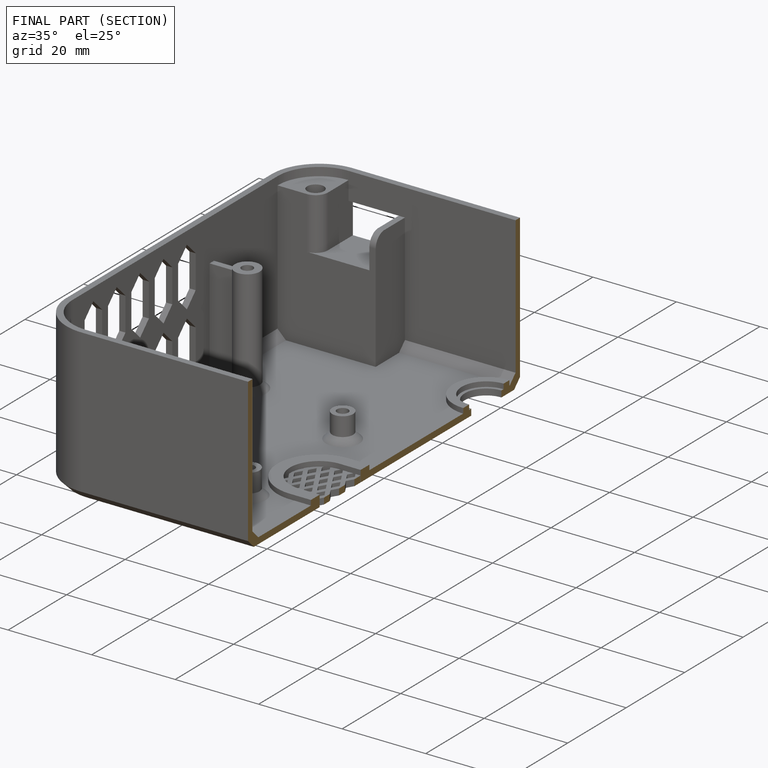
[diagram: finished part — half-section view (interior)]
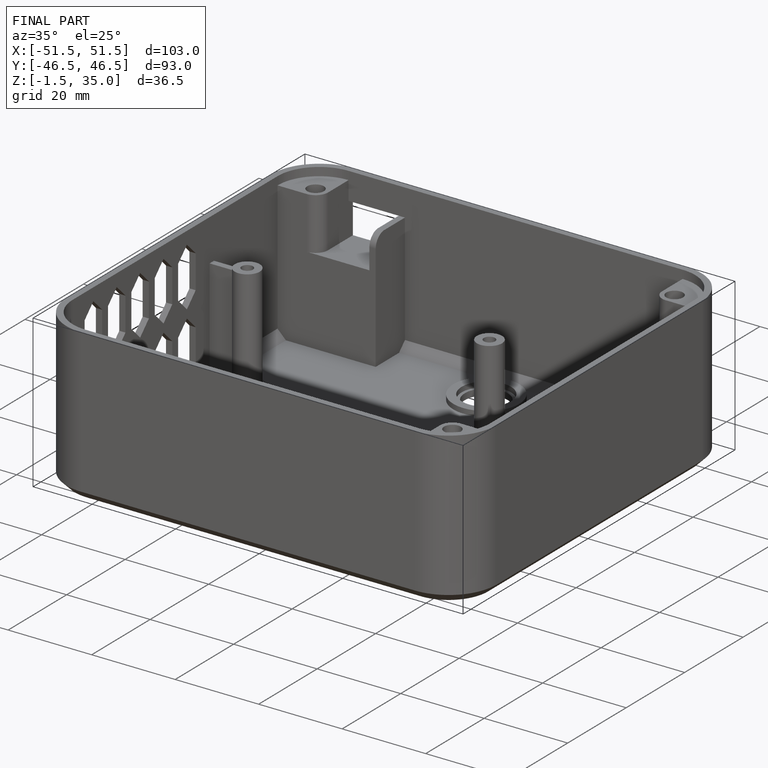
[diagram: finished part — iso view with bounding-box wireframe]
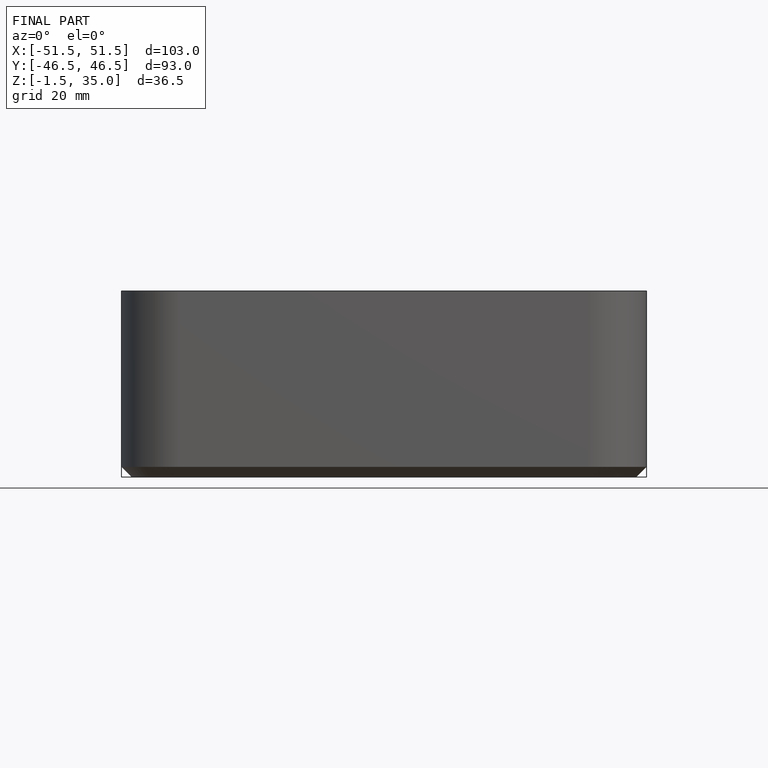
[diagram: finished part — front view with bounding-box wireframe]
